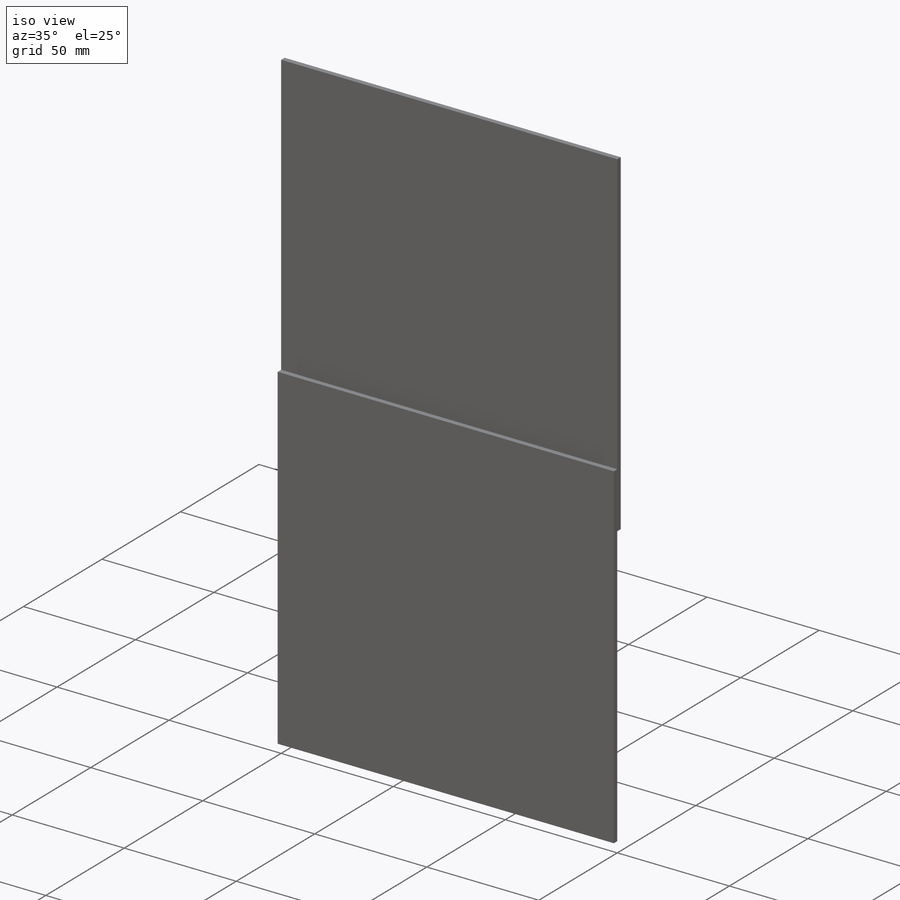
[diagram: iso view]
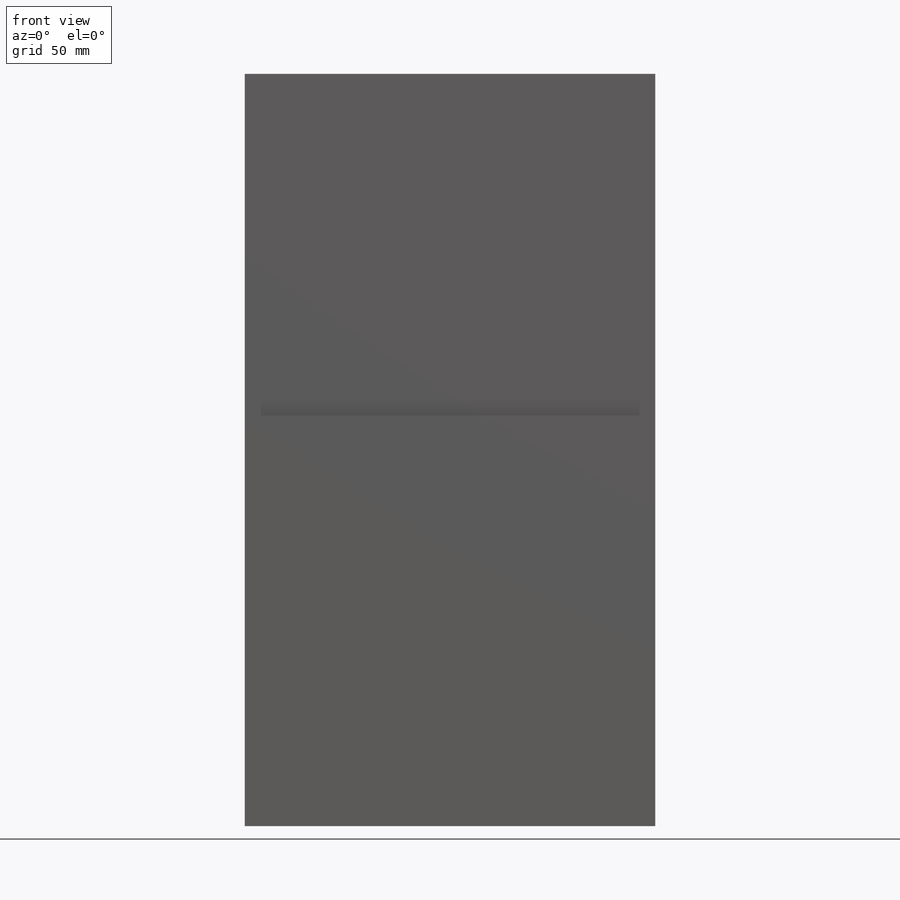
[diagram: front view]
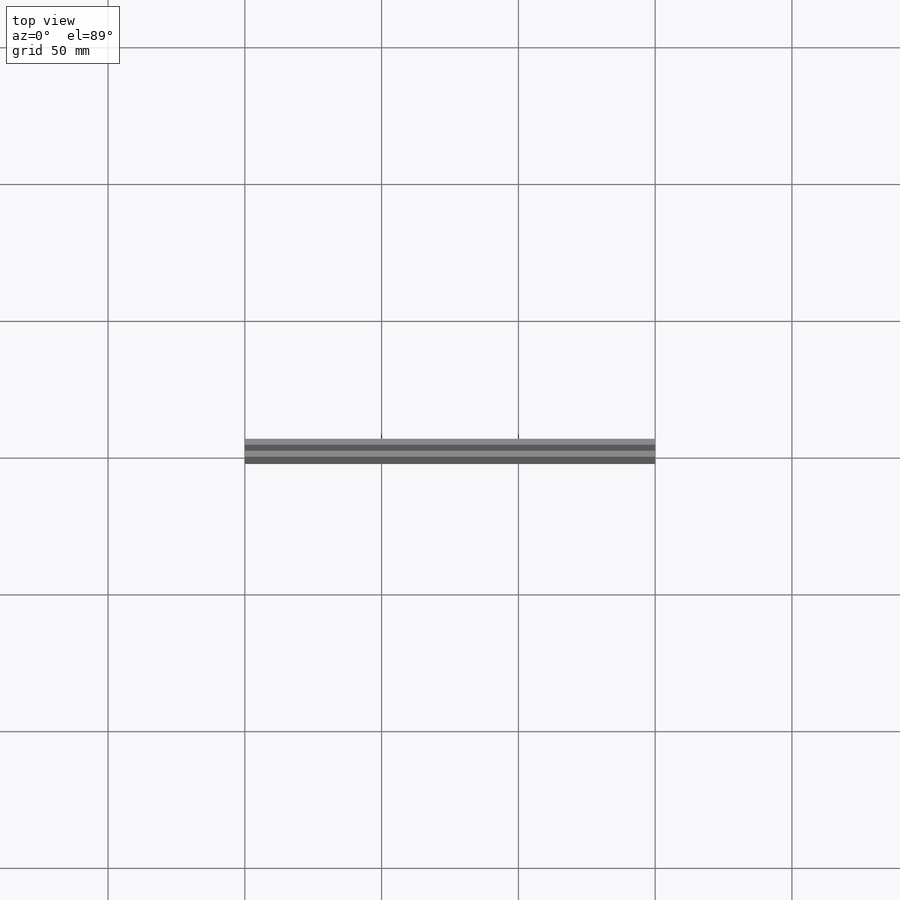
[diagram: top view]
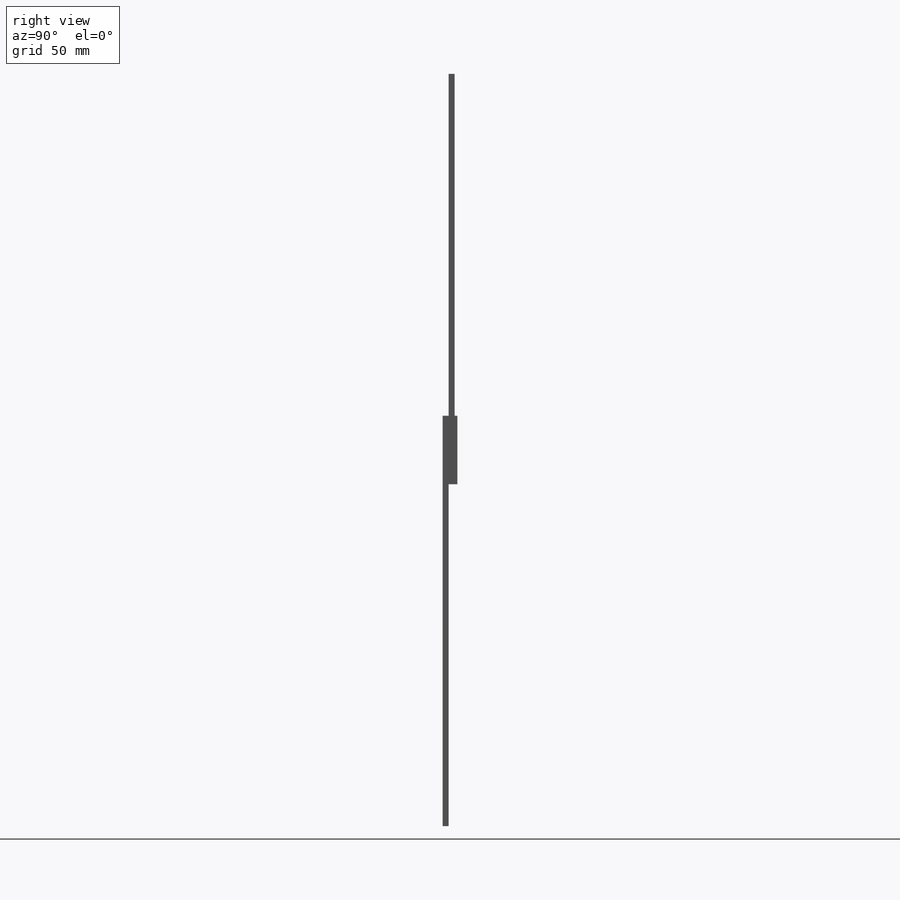
[diagram: right view]
SOLIDWORKS PART (.sldprt)
format: sldprt  version: not decoded by parser v0  size: 164,352 bytes
history: native  units: mm
features: plane x3, sketch x3, extrude x3, material x1 (+9 scaffold rows collapsed)
feature tree (19):
  scaffold x9  (default folders/planes/origin — collapsed)
  material  "Material <nicht festgelegt>"
  plane  "Ebene vorne"
  plane  "Ebene oben"
  plane  "Ebene rechts"
  sketch  "Skizze2"  dims[D1=150.0mm D2=150.0mm]
  extrude  "Aufsatz-Linear austragen1"  Depth=2.2mm
  sketch  "Skizze3"  dims[D1=150.0mm D2=25.0mm]
  extrude  "Aufsatz-Linear austragen3"  Depth=2.2mm
  sketch  "Skizze4"  dims[D1=1.0mm D2=25.0mm]
  extrude  "Aufsatz-Linear austragen4"  Depth=1mm
decode coverage: 6 of 6 modeling features carry decoded parameters
note: suppression state not decoded; provenance and decode notes live in map.json
